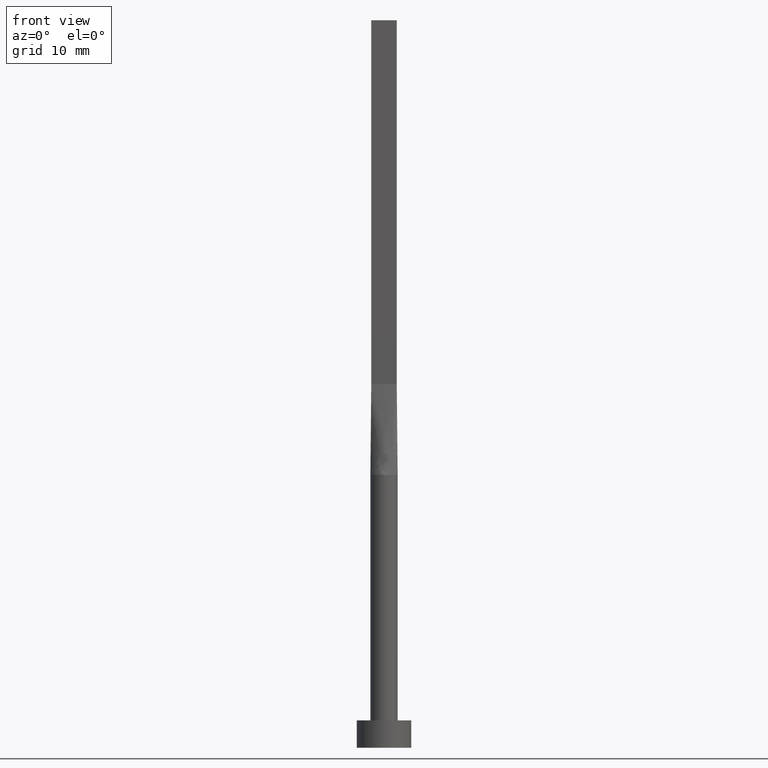
[diagram: clean part render]
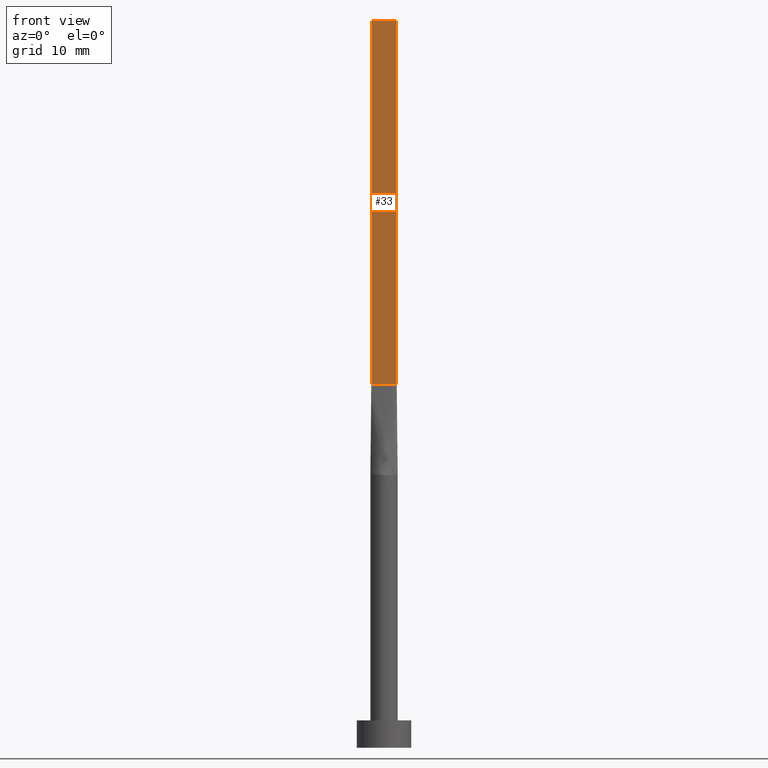
[diagram: same view with one face highlighted and labeled with its STEP entity id]
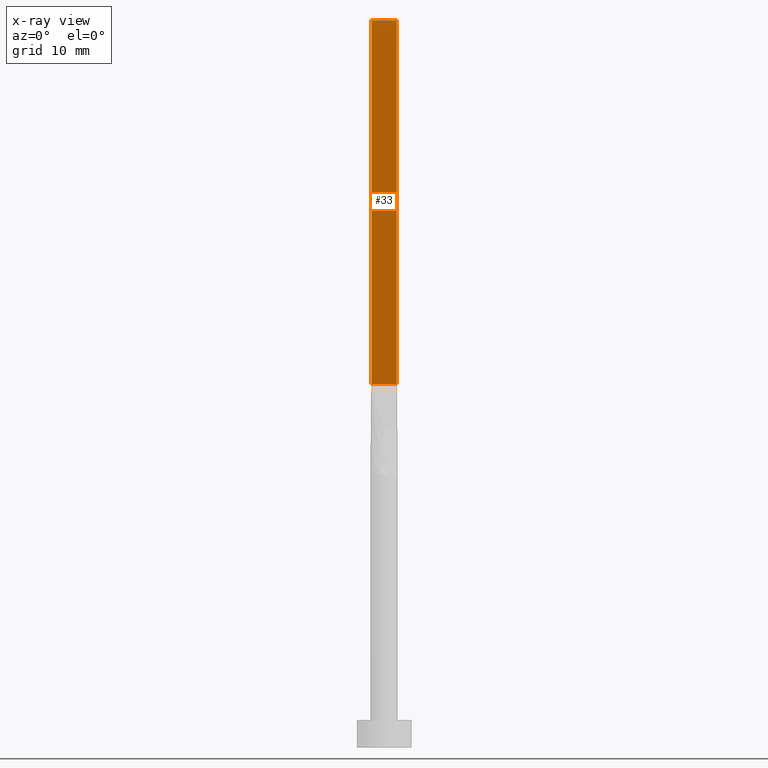
[diagram: x-ray of the same camera — body ghosted, the highlighted face saturated]
A machine part, front view. The second image highlights one B-rep face of the part: STEP entity #33.
The next image is the same camera in x-ray: the body ghosted, the highlighted face saturated — about 0% of this face is hidden behind the body in this view.
In plain terms, the highlighted planar face has unit normal (0, 1, -0).
Its self-contained STEP definition (entity closure, byte-faithful):
#33 = ADVANCED_FACE ( 'NONE', ( #398 ), #525, .F. ) ;
#57 = EDGE_CURVE ( 'NONE', #417, #224, #576, .T. ) ;
#69 = VECTOR ( 'NONE', #488, 1000.000000000000000 ) ;
#85 = DIRECTION ( 'NONE',  ( -1.000000000000000000, 5.808225924029488744E-17, 0.000000000000000000 ) ) ;
#86 = ORIENTED_EDGE ( 'NONE', *, *, #57, .F. ) ;
#108 = CARTESIAN_POINT ( 'NONE',  ( 1.399999999999999911, -0.2999999999999997669, 40.00000000000000000 ) ) ;
#124 = CARTESIAN_POINT ( 'NONE',  ( -1.399999999999999911, -0.2999999999999996003, 80.00000000000000000 ) ) ;
#138 = VECTOR ( 'NONE', #562, 1000.000000000000000 ) ;
#160 = VERTEX_POINT ( 'NONE', #303 ) ;
#161 = EDGE_CURVE ( 'NONE', #160, #530, #215, .T. ) ;
#162 = VECTOR ( 'NONE', #373, 1000.000000000000000 ) ;
#177 = CARTESIAN_POINT ( 'NONE',  ( -1.399999999999999911, -0.2999999999999996003, 80.00000000000000000 ) ) ;
#191 = LINE ( 'NONE', #508, #162 ) ;
#215 = LINE ( 'NONE', #517, #138 ) ;
#224 = VERTEX_POINT ( 'NONE', #243 ) ;
#227 = VECTOR ( 'NONE', #363, 1000.000000000000000 ) ;
#243 = CARTESIAN_POINT ( 'NONE',  ( 1.399999999999999911, -0.2999999999999997669, 80.00000000000000000 ) ) ;
#266 = EDGE_CURVE ( 'NONE', #224, #530, #191, .T. ) ;
#303 = CARTESIAN_POINT ( 'NONE',  ( -1.399999999999999911, -0.2999999999999996003, 40.00000000000000000 ) ) ;
#312 = DIRECTION ( 'NONE',  ( 5.808225924029488744E-17, 1.000000000000000000, -0.000000000000000000 ) ) ;
#320 = CARTESIAN_POINT ( 'NONE',  ( -1.399999999999999911, -0.2999999999999996003, 80.00000000000000000 ) ) ;
#347 = ORIENTED_EDGE ( 'NONE', *, *, #161, .T. ) ;
#363 = DIRECTION ( 'NONE',  ( -0.000000000000000000, -0.000000000000000000, -1.000000000000000000 ) ) ;
#373 = DIRECTION ( 'NONE',  ( -0.000000000000000000, -0.000000000000000000, -1.000000000000000000 ) ) ;
#384 = AXIS2_PLACEMENT_3D ( 'NONE', #177, #312, #85 ) ;
#396 = ORIENTED_EDGE ( 'NONE', *, *, #266, .F. ) ;
#398 = FACE_OUTER_BOUND ( 'NONE', #509, .T. ) ;
#417 = VERTEX_POINT ( 'NONE', #546 ) ;
#423 = EDGE_CURVE ( 'NONE', #417, #160, #550, .T. ) ;
#488 = DIRECTION ( 'NONE',  ( 1.000000000000000000, -5.808225924029488744E-17, 0.000000000000000000 ) ) ;
#508 = CARTESIAN_POINT ( 'NONE',  ( 1.399999999999999911, -0.2999999999999997669, 80.00000000000000000 ) ) ;
#509 = EDGE_LOOP ( 'NONE', ( #347, #396, #86, #515 ) ) ;
#515 = ORIENTED_EDGE ( 'NONE', *, *, #423, .T. ) ;
#517 = CARTESIAN_POINT ( 'NONE',  ( -1.399999999999999911, -0.2999999999999996003, 40.00000000000000000 ) ) ;
#525 = PLANE ( 'NONE',  #384 ) ;
#530 = VERTEX_POINT ( 'NONE', #108 ) ;
#546 = CARTESIAN_POINT ( 'NONE',  ( -1.399999999999999911, -0.2999999999999996003, 80.00000000000000000 ) ) ;
#550 = LINE ( 'NONE', #320, #227 ) ;
#562 = DIRECTION ( 'NONE',  ( 1.000000000000000000, -5.808225924029488744E-17, 0.000000000000000000 ) ) ;
#576 = LINE ( 'NONE', #124, #69 ) ;